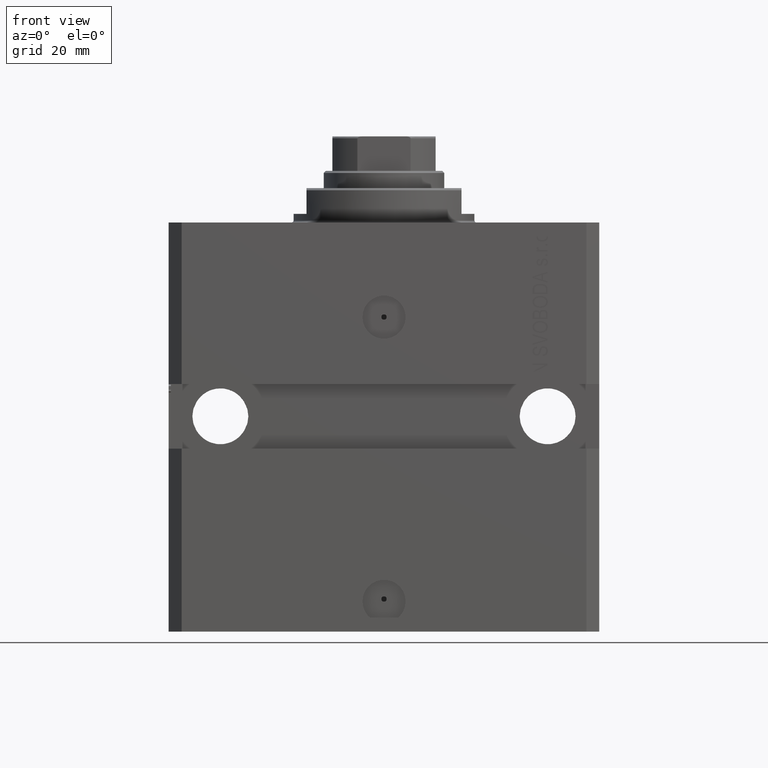
[diagram: clean part render]
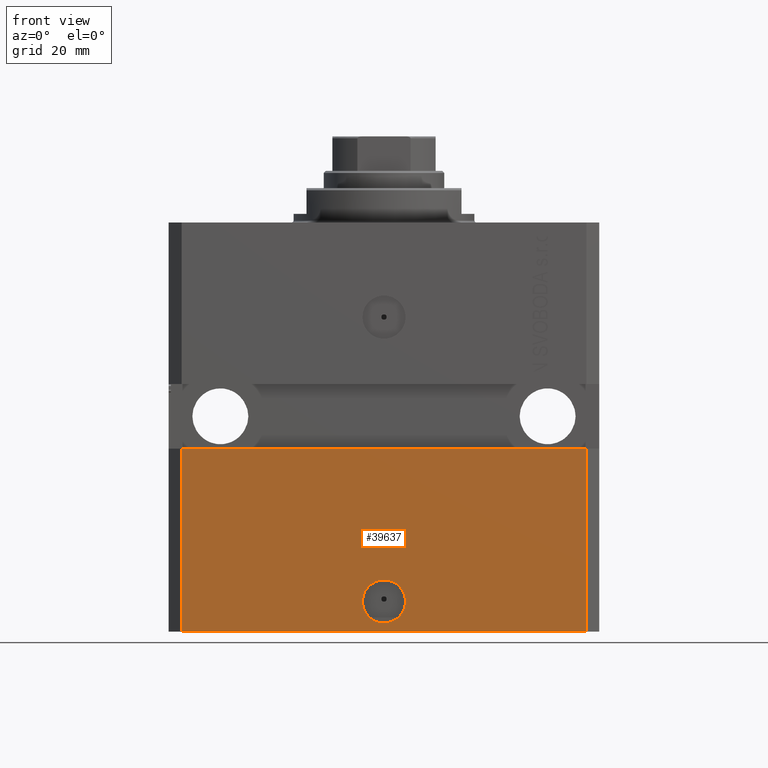
[diagram: same view with one face highlighted and labeled with its STEP entity id]
A machine part, front view. The second image highlights one B-rep face of the part: STEP entity #39637.
In plain terms, the highlighted planar face has unit normal (-0, -1, 0).
Its self-contained STEP definition (entity closure, byte-faithful):
#671 = VECTOR ( 'NONE', #38561, 1000.000000000000000 ) ;
#2141 = DIRECTION ( 'NONE',  ( 0.000000000000000000, 0.000000000000000000, 1.000000000000000000 ) ) ;
#2295 = VERTEX_POINT ( 'NONE', #36735 ) ;
#2961 = ORIENTED_EDGE ( 'NONE', *, *, #37237, .T. ) ;
#3177 = PLANE ( 'NONE',  #4336 ) ;
#3494 = VECTOR ( 'NONE', #31056, 1000.000000000000000 ) ;
#3761 = AXIS2_PLACEMENT_3D ( 'NONE', #17287, #31137, #17949 ) ;
#4281 = VECTOR ( 'NONE', #2141, 1000.000000000000000 ) ;
#4336 = AXIS2_PLACEMENT_3D ( 'NONE', #20205, #6794, #17028 ) ;
#4930 = ORIENTED_EDGE ( 'NONE', *, *, #31409, .F. ) ;
#5018 = EDGE_CURVE ( 'NONE', #7628, #44523, #36426, .T. ) ;
#5185 = ORIENTED_EDGE ( 'NONE', *, *, #30733, .F. ) ;
#6590 = CARTESIAN_POINT ( 'NONE',  ( -47.00000000000000000, -37.49999999999999289, -95.00000000000000000 ) ) ;
#6794 = DIRECTION ( 'NONE',  ( -1.476360405086644556E-16, -1.000000000000000000, 0.000000000000000000 ) ) ;
#7628 = VERTEX_POINT ( 'NONE', #25346 ) ;
#7880 = CIRCLE ( 'NONE', #24562, 5.000000000000006217 ) ;
#10997 = ORIENTED_EDGE ( 'NONE', *, *, #41670, .T. ) ;
#11338 = CARTESIAN_POINT ( 'NONE',  ( -5.536351519074916863E-15, -37.50000000000000000, -88.00000000000000000 ) ) ;
#12249 = VERTEX_POINT ( 'NONE', #37901 ) ;
#13396 = FACE_OUTER_BOUND ( 'NONE', #18786, .T. ) ;
#13616 = LINE ( 'NONE', #17240, #671 ) ;
#17028 = DIRECTION ( 'NONE',  ( 1.000000000000000000, -1.476360405086644556E-16, 0.000000000000000000 ) ) ;
#17240 = CARTESIAN_POINT ( 'NONE',  ( 47.00000000000000000, -37.50000000000000711, -95.00000000000000000 ) ) ;
#17287 = CARTESIAN_POINT ( 'NONE',  ( -5.536351519074916863E-15, -37.50000000000000000, -88.00000000000000000 ) ) ;
#17949 = DIRECTION ( 'NONE',  ( 1.000000000000000000, 0.000000000000000000, 0.000000000000000000 ) ) ;
#17995 = CARTESIAN_POINT ( 'NONE',  ( 47.00000000000000000, -37.49999999999999289, -52.50000000000000000 ) ) ;
#18786 = EDGE_LOOP ( 'NONE', ( #5185, #37474, #10997, #2961 ) ) ;
#18839 = CARTESIAN_POINT ( 'NONE',  ( 5.000000000000000888, -37.50000000000000000, -88.00000000000000000 ) ) ;
#20205 = CARTESIAN_POINT ( 'NONE',  ( -47.00000000000000000, -37.49999999999999289, -95.00000000000000000 ) ) ;
#21619 = VERTEX_POINT ( 'NONE', #6590 ) ;
#21710 = LINE ( 'NONE', #38970, #27621 ) ;
#23475 = LINE ( 'NONE', #37318, #4281 ) ;
#24562 = AXIS2_PLACEMENT_3D ( 'NONE', #11338, #38803, #28825 ) ;
#24973 = ORIENTED_EDGE ( 'NONE', *, *, #5018, .F. ) ;
#25346 = CARTESIAN_POINT ( 'NONE',  ( -5.000000000000011546, -37.50000000000000000, -88.00000000000000000 ) ) ;
#26593 = EDGE_LOOP ( 'NONE', ( #4930, #24973 ) ) ;
#26740 = VERTEX_POINT ( 'NONE', #17995 ) ;
#27621 = VECTOR ( 'NONE', #43059, 1000.000000000000000 ) ;
#28825 = DIRECTION ( 'NONE',  ( 1.000000000000000000, 0.000000000000000000, 0.000000000000000000 ) ) ;
#30733 = EDGE_CURVE ( 'NONE', #2295, #26740, #41277, .T. ) ;
#31056 = DIRECTION ( 'NONE',  ( 1.000000000000000000, 1.387778780781445676E-16, 0.000000000000000000 ) ) ;
#31137 = DIRECTION ( 'NONE',  ( 1.176083712526788232E-16, -1.000000000000000000, 0.000000000000000000 ) ) ;
#31409 = EDGE_CURVE ( 'NONE', #44523, #7628, #7880, .T. ) ;
#33051 = EDGE_CURVE ( 'NONE', #21619, #2295, #23475, .T. ) ;
#34281 = FACE_BOUND ( 'NONE', #26593, .T. ) ;
#36426 = CIRCLE ( 'NONE', #3761, 5.000000000000006217 ) ;
#36735 = CARTESIAN_POINT ( 'NONE',  ( -46.99999999999998579, -37.50000000000000711, -52.50000000000000000 ) ) ;
#37237 = EDGE_CURVE ( 'NONE', #12249, #26740, #13616, .T. ) ;
#37318 = CARTESIAN_POINT ( 'NONE',  ( -47.00000000000000000, -37.49999999999999289, -95.00000000000000000 ) ) ;
#37474 = ORIENTED_EDGE ( 'NONE', *, *, #33051, .F. ) ;
#37901 = CARTESIAN_POINT ( 'NONE',  ( 47.00000000000000000, -37.50000000000000711, -95.00000000000000000 ) ) ;
#38561 = DIRECTION ( 'NONE',  ( 0.000000000000000000, 0.000000000000000000, 1.000000000000000000 ) ) ;
#38803 = DIRECTION ( 'NONE',  ( 1.176083712526788232E-16, -1.000000000000000000, 0.000000000000000000 ) ) ;
#38970 = CARTESIAN_POINT ( 'NONE',  ( -47.00000000000000000, -37.49999999999999289, -95.00000000000000000 ) ) ;
#39637 = ADVANCED_FACE ( 'NONE', ( #34281, #13396 ), #3177, .T. ) ;
#41277 = LINE ( 'NONE', #41497, #3494 ) ;
#41497 = CARTESIAN_POINT ( 'NONE',  ( -50.00000000000001421, -37.50000000000000711, -52.50000000000000000 ) ) ;
#41670 = EDGE_CURVE ( 'NONE', #21619, #12249, #21710, .T. ) ;
#43059 = DIRECTION ( 'NONE',  ( 1.000000000000000000, -1.476360405086644309E-16, 0.000000000000000000 ) ) ;
#44523 = VERTEX_POINT ( 'NONE', #18839 ) ;